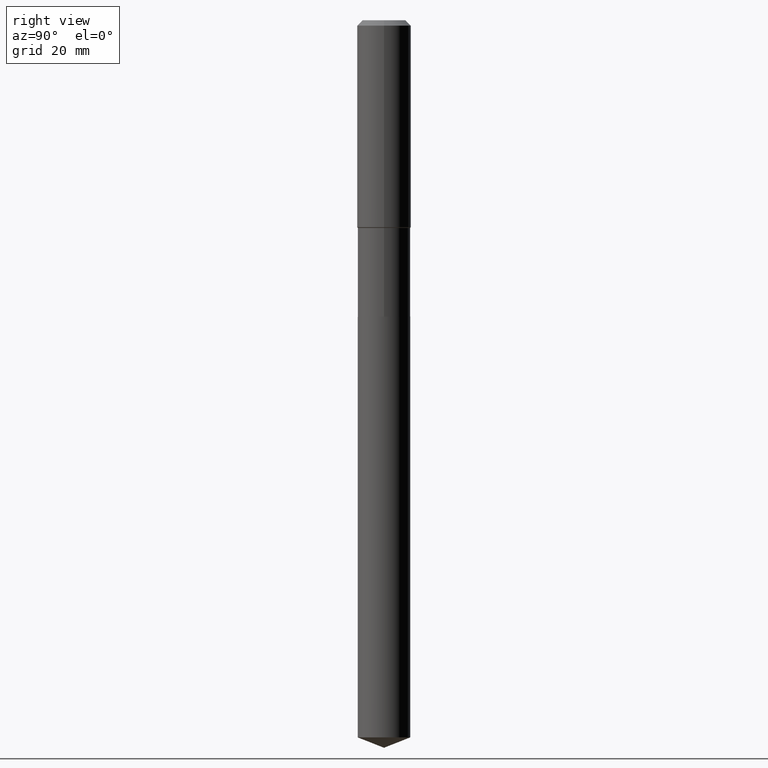
[diagram: clean part render]
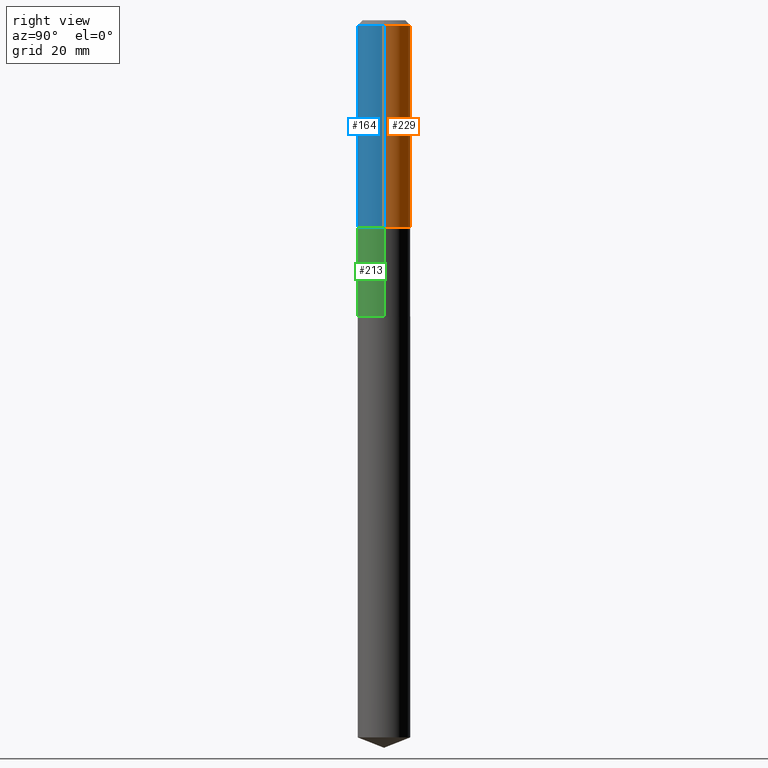
[diagram: same view with three faces highlighted in distinct colors, each labeled with its STEP entity id]
A machine part, right view with three faces highlighted in distinct colors.
Their STEP definitions:

[orange] entity #229 — the highlighted cylindrical surface (edge-blend (fillet) strip) has radius 5.9995 mm, axis along (-0, 0, 1).
#3 = VERTEX_POINT ( 'NONE', #185 ) ;
#10 = DIRECTION ( 'NONE',  ( -2.445468806185136597E-29, 3.491481338843145583E-15, 1.000000000000000000 ) ) ;
#17 = FACE_OUTER_BOUND ( 'NONE', #131, .T. ) ;
#20 = EDGE_CURVE ( 'NONE', #3, #134, #263, .T. ) ;
#50 = CARTESIAN_POINT ( 'NONE',  ( 4.437792242584169417E-29, -6.335991185598659855E-15, -1.814700000000001090 ) ) ;
#63 = ORIENTED_EDGE ( 'NONE', *, *, #327, .T. ) ;
#82 = CIRCLE ( 'NONE', #190, 0.2362000000000000210 ) ;
#100 = DIRECTION ( 'NONE',  ( 1.000000000000000000, -6.982962677686267499E-15, 0.000000000000000000 ) ) ;
#102 = CARTESIAN_POINT ( 'NONE',  ( 1.155239464041866207E-30, -1.649375784469512845E-16, -0.04724000000000030952 ) ) ;
#123 = CARTESIAN_POINT ( 'NONE',  ( 0.2362000000000000210, -1.814313362916447834E-15, -0.04724000000000030952 ) ) ;
#131 = EDGE_LOOP ( 'NONE', ( #148, #63, #257, #239 ) ) ;
#133 = LINE ( 'NONE', #288, #307 ) ;
#134 = VERTEX_POINT ( 'NONE', #123 ) ;
#148 = ORIENTED_EDGE ( 'NONE', *, *, #234, .T. ) ;
#185 = CARTESIAN_POINT ( 'NONE',  ( 0.2362000000000002431, -7.985366970068157957E-15, -1.814700000000001090 ) ) ;
#190 = AXIS2_PLACEMENT_3D ( 'NONE', #102, #323, #100 ) ;
#203 = CARTESIAN_POINT ( 'NONE',  ( -0.2362000000000000210, -1.572162440157448004E-15, -0.04724000000000030952 ) ) ;
#216 = AXIS2_PLACEMENT_3D ( 'NONE', #466, #10, #388 ) ;
#229 = ADVANCED_FACE ( 'NONE', ( #17 ), #315, .T. ) ;
#234 = EDGE_CURVE ( 'NONE', #3, #403, #400, .T. ) ;
#239 = ORIENTED_EDGE ( 'NONE', *, *, #20, .F. ) ;
#250 = VERTEX_POINT ( 'NONE', #203 ) ;
#257 = ORIENTED_EDGE ( 'NONE', *, *, #387, .F. ) ;
#263 = LINE ( 'NONE', #336, #473 ) ;
#279 = DIRECTION ( 'NONE',  ( -2.445468806185136597E-29, 3.491481338843145583E-15, 1.000000000000000000 ) ) ;
#288 = CARTESIAN_POINT ( 'NONE',  ( -0.2362000000000001321, 1.678301941865357577E-15, -1.161852468318209457E-29 ) ) ;
#302 = DIRECTION ( 'NONE',  ( -2.445468806185136877E-29, 3.491481338843145188E-15, 1.000000000000000000 ) ) ;
#307 = VECTOR ( 'NONE', #328, 39.37007874015748143 ) ;
#315 = CYLINDRICAL_SURFACE ( 'NONE', #216, 0.2362000000000001321 ) ;
#321 = CARTESIAN_POINT ( 'NONE',  ( -0.2362000000000002431, -4.657689243733302672E-15, -1.814700000000001090 ) ) ;
#323 = DIRECTION ( 'NONE',  ( -2.445468806185136597E-29, 3.491481338843145583E-15, 1.000000000000000000 ) ) ;
#327 = EDGE_CURVE ( 'NONE', #403, #250, #133, .T. ) ;
#328 = DIRECTION ( 'NONE',  ( -2.445468806185136877E-29, 3.491481338843145188E-15, 1.000000000000000000 ) ) ;
#336 = CARTESIAN_POINT ( 'NONE',  ( 0.2362000000000001321, -1.649375784469497117E-15, 1.151752954443000789E-29 ) ) ;
#361 = AXIS2_PLACEMENT_3D ( 'NONE', #50, #279, #432 ) ;
#387 = EDGE_CURVE ( 'NONE', #134, #250, #82, .T. ) ;
#388 = DIRECTION ( 'NONE',  ( 1.000000000000000000, -6.982962677686266711E-15, 4.876176775795936353E-29 ) ) ;
#400 = CIRCLE ( 'NONE', #361, 0.2362000000000002431 ) ;
#403 = VERTEX_POINT ( 'NONE', #321 ) ;
#432 = DIRECTION ( 'NONE',  ( 1.000000000000000000, -6.982962677686265922E-15, 0.000000000000000000 ) ) ;
#466 = CARTESIAN_POINT ( 'NONE',  ( 0.000000000000000000, 0.000000000000000000, 0.000000000000000000 ) ) ;
#473 = VECTOR ( 'NONE', #302, 39.37007874015748143 ) ;

[blue] entity #164 — the highlighted cylindrical surface (edge-blend (fillet) strip) has radius 5.9995 mm, axis along (-0, 0, 1).
#3 = VERTEX_POINT ( 'NONE', #185 ) ;
#20 = EDGE_CURVE ( 'NONE', #3, #134, #263, .T. ) ;
#22 = DIRECTION ( 'NONE',  ( 1.000000000000000000, -6.982962677686266711E-15, 4.876176775795936353E-29 ) ) ;
#42 = EDGE_CURVE ( 'NONE', #403, #3, #472, .T. ) ;
#65 = ORIENTED_EDGE ( 'NONE', *, *, #476, .F. ) ;
#71 = DIRECTION ( 'NONE',  ( 1.000000000000000000, -6.982962677686267499E-15, 0.000000000000000000 ) ) ;
#78 = DIRECTION ( 'NONE',  ( -2.445468806185136597E-29, 3.491481338843145583E-15, 1.000000000000000000 ) ) ;
#110 = ORIENTED_EDGE ( 'NONE', *, *, #327, .F. ) ;
#120 = DIRECTION ( 'NONE',  ( 1.000000000000000000, -6.982962677686265922E-15, 0.000000000000000000 ) ) ;
#123 = CARTESIAN_POINT ( 'NONE',  ( 0.2362000000000000210, -1.814313362916447834E-15, -0.04724000000000030952 ) ) ;
#133 = LINE ( 'NONE', #288, #307 ) ;
#134 = VERTEX_POINT ( 'NONE', #123 ) ;
#144 = CARTESIAN_POINT ( 'NONE',  ( 4.437792242584169417E-29, -6.335991185598659855E-15, -1.814700000000001090 ) ) ;
#164 = ADVANCED_FACE ( 'NONE', ( #242 ), #426, .T. ) ;
#165 = CARTESIAN_POINT ( 'NONE',  ( 0.000000000000000000, 0.000000000000000000, 0.000000000000000000 ) ) ;
#185 = CARTESIAN_POINT ( 'NONE',  ( 0.2362000000000002431, -7.985366970068157957E-15, -1.814700000000001090 ) ) ;
#203 = CARTESIAN_POINT ( 'NONE',  ( -0.2362000000000000210, -1.572162440157448004E-15, -0.04724000000000030952 ) ) ;
#242 = FACE_OUTER_BOUND ( 'NONE', #367, .T. ) ;
#250 = VERTEX_POINT ( 'NONE', #203 ) ;
#260 = AXIS2_PLACEMENT_3D ( 'NONE', #144, #411, #120 ) ;
#263 = LINE ( 'NONE', #336, #473 ) ;
#288 = CARTESIAN_POINT ( 'NONE',  ( -0.2362000000000001321, 1.678301941865357577E-15, -1.161852468318209457E-29 ) ) ;
#302 = DIRECTION ( 'NONE',  ( -2.445468806185136877E-29, 3.491481338843145188E-15, 1.000000000000000000 ) ) ;
#307 = VECTOR ( 'NONE', #328, 39.37007874015748143 ) ;
#321 = CARTESIAN_POINT ( 'NONE',  ( -0.2362000000000002431, -4.657689243733302672E-15, -1.814700000000001090 ) ) ;
#327 = EDGE_CURVE ( 'NONE', #403, #250, #133, .T. ) ;
#328 = DIRECTION ( 'NONE',  ( -2.445468806185136877E-29, 3.491481338843145188E-15, 1.000000000000000000 ) ) ;
#330 = AXIS2_PLACEMENT_3D ( 'NONE', #165, #343, #22 ) ;
#336 = CARTESIAN_POINT ( 'NONE',  ( 0.2362000000000001321, -1.649375784469497117E-15, 1.151752954443000789E-29 ) ) ;
#343 = DIRECTION ( 'NONE',  ( -2.445468806185136597E-29, 3.491481338843145583E-15, 1.000000000000000000 ) ) ;
#352 = ORIENTED_EDGE ( 'NONE', *, *, #20, .T. ) ;
#363 = CIRCLE ( 'NONE', #453, 0.2362000000000000210 ) ;
#367 = EDGE_LOOP ( 'NONE', ( #110, #471, #352, #65 ) ) ;
#377 = CARTESIAN_POINT ( 'NONE',  ( 1.155239464041866207E-30, -1.649375784469512845E-16, -0.04724000000000030952 ) ) ;
#403 = VERTEX_POINT ( 'NONE', #321 ) ;
#411 = DIRECTION ( 'NONE',  ( -2.445468806185136597E-29, 3.491481338843145583E-15, 1.000000000000000000 ) ) ;
#426 = CYLINDRICAL_SURFACE ( 'NONE', #330, 0.2362000000000001321 ) ;
#453 = AXIS2_PLACEMENT_3D ( 'NONE', #377, #78, #71 ) ;
#471 = ORIENTED_EDGE ( 'NONE', *, *, #42, .T. ) ;
#472 = CIRCLE ( 'NONE', #260, 0.2362000000000002431 ) ;
#473 = VECTOR ( 'NONE', #302, 39.37007874015748143 ) ;
#476 = EDGE_CURVE ( 'NONE', #250, #134, #363, .T. ) ;

[green] entity #213 — the highlighted cylindrical surface (edge-blend (fillet) strip) has radius 5.8496 mm, axis along (-0, 0, 1).
#53 = VECTOR ( 'NONE', #397, 39.37007874015748143 ) ;
#56 = EDGE_CURVE ( 'NONE', #179, #90, #152, .T. ) ;
#59 = VECTOR ( 'NONE', #192, 39.37007874015748143 ) ;
#86 = DIRECTION ( 'NONE',  ( 1.000000000000000000, -6.982962677686265922E-15, 0.000000000000000000 ) ) ;
#88 = DIRECTION ( 'NONE',  ( -2.445468806185136597E-29, 3.491481338843145583E-15, 1.000000000000000000 ) ) ;
#90 = VERTEX_POINT ( 'NONE', #458 ) ;
#114 = CIRCLE ( 'NONE', #354, 0.2302999999999998937 ) ;
#121 = CARTESIAN_POINT ( 'NONE',  ( -0.2302999999999999214, 1.636379920455510170E-15, -1.132830751285704470E-29 ) ) ;
#127 = CARTESIAN_POINT ( 'NONE',  ( 0.2302999999999998937, -7.964767230168983427E-15, -1.820600000000001328 ) ) ;
#137 = EDGE_CURVE ( 'NONE', #179, #479, #451, .T. ) ;
#138 = CARTESIAN_POINT ( 'NONE',  ( 4.452220508540662569E-29, -6.356590925497835963E-15, -1.820600000000001328 ) ) ;
#152 = LINE ( 'NONE', #121, #59 ) ;
#179 = VERTEX_POINT ( 'NONE', #309 ) ;
#192 = DIRECTION ( 'NONE',  ( -2.445468806185136877E-29, 3.491481338843145188E-15, 1.000000000000000000 ) ) ;
#209 = VERTEX_POINT ( 'NONE', #127 ) ;
#213 = ADVANCED_FACE ( 'NONE', ( #241 ), #355, .T. ) ;
#230 = ORIENTED_EDGE ( 'NONE', *, *, #399, .T. ) ;
#233 = DIRECTION ( 'NONE',  ( -2.445468806185136597E-29, 3.491481338843145583E-15, 1.000000000000000000 ) ) ;
#238 = DIRECTION ( 'NONE',  ( 1.000000000000000000, -6.982962677686266711E-15, 4.876176775795935793E-29 ) ) ;
#241 = FACE_OUTER_BOUND ( 'NONE', #438, .T. ) ;
#266 = CARTESIAN_POINT ( 'NONE',  ( 0.2303000000000000047, -1.067869567485175779E-14, -2.597900000000000542 ) ) ;
#289 = ORIENTED_EDGE ( 'NONE', *, *, #424, .F. ) ;
#309 = CARTESIAN_POINT ( 'NONE',  ( -0.2302999999999999770, -6.077175227383711991E-15, -2.597900000000000542 ) ) ;
#320 = AXIS2_PLACEMENT_3D ( 'NONE', #390, #233, #86 ) ;
#354 = AXIS2_PLACEMENT_3D ( 'NONE', #138, #368, #365 ) ;
#355 = CYLINDRICAL_SURFACE ( 'NONE', #420, 0.2302999999999999214 ) ;
#358 = ORIENTED_EDGE ( 'NONE', *, *, #56, .F. ) ;
#359 = CARTESIAN_POINT ( 'NONE',  ( 0.2302999999999999214, -1.608176304671146674E-15, 1.122983511465803578E-29 ) ) ;
#365 = DIRECTION ( 'NONE',  ( 1.000000000000000000, -6.982962677686269077E-15, 0.000000000000000000 ) ) ;
#368 = DIRECTION ( 'NONE',  ( -2.445468806185136597E-29, 3.491481338843145583E-15, 1.000000000000000000 ) ) ;
#384 = CARTESIAN_POINT ( 'NONE',  ( 0.000000000000000000, 0.000000000000000000, 0.000000000000000000 ) ) ;
#390 = CARTESIAN_POINT ( 'NONE',  ( 6.353083411588368076E-29, -9.070519370180611907E-15, -2.597900000000000542 ) ) ;
#397 = DIRECTION ( 'NONE',  ( -2.445468806185136877E-29, 3.491481338843145188E-15, 1.000000000000000000 ) ) ;
#399 = EDGE_CURVE ( 'NONE', #479, #209, #470, .T. ) ;
#420 = AXIS2_PLACEMENT_3D ( 'NONE', #384, #88, #238 ) ;
#424 = EDGE_CURVE ( 'NONE', #90, #209, #114, .T. ) ;
#438 = EDGE_LOOP ( 'NONE', ( #358, #477, #230, #289 ) ) ;
#451 = CIRCLE ( 'NONE', #320, 0.2303000000000000047 ) ;
#458 = CARTESIAN_POINT ( 'NONE',  ( -0.2302999999999998937, -6.077175227383712779E-15, -1.820600000000001328 ) ) ;
#470 = LINE ( 'NONE', #359, #53 ) ;
#477 = ORIENTED_EDGE ( 'NONE', *, *, #137, .T. ) ;
#479 = VERTEX_POINT ( 'NONE', #266 ) ;